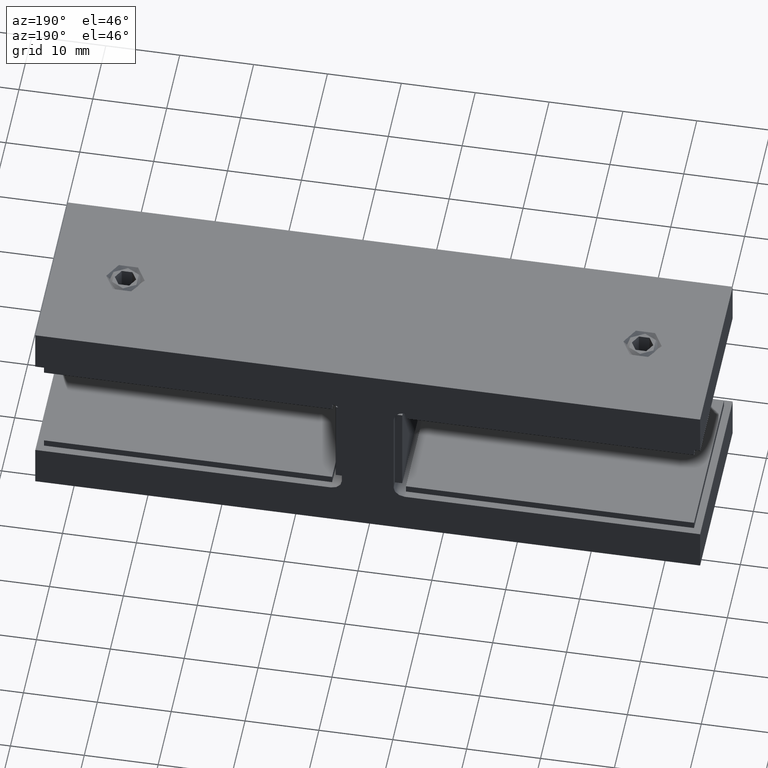
[diagram: clean part render]
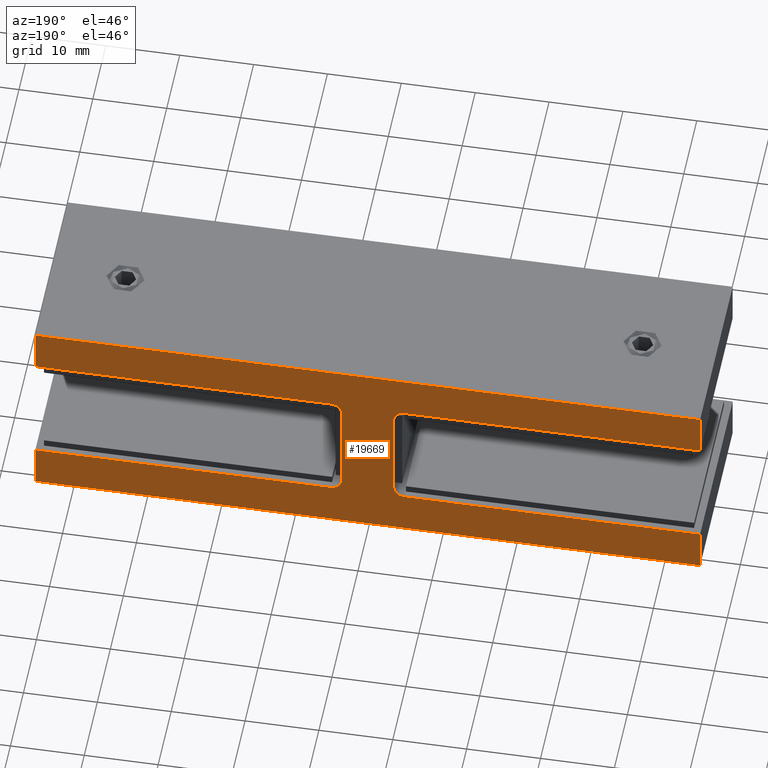
[diagram: same view with one face highlighted and labeled with its STEP entity id]
A machine part, auxiliary view. The second image highlights one B-rep face of the part: STEP entity #19669.
In plain terms, the highlighted planar face has unit normal (0, -1, 0).
Its self-contained STEP definition (entity closure, byte-faithful):
#244 = ORIENTED_EDGE ( 'NONE', *, *, #19443, .T. ) ;
#911 = VERTEX_POINT ( 'NONE', #19300 ) ;
#985 = EDGE_CURVE ( 'NONE', #11745, #911, #16335, .T. ) ;
#999 = EDGE_CURVE ( 'NONE', #12320, #14841, #11874, .T. ) ;
#1053 = VECTOR ( 'NONE', #21068, 1000.000000000000000 ) ;
#1247 = CARTESIAN_POINT ( 'NONE',  ( -3.499999999999986677, 12.50000000000000000, 6.500000000000013323 ) ) ;
#1248 = CIRCLE ( 'NONE', #17547, 1.499999999999999556 ) ;
#1629 = CARTESIAN_POINT ( 'NONE',  ( -3.499999999999995115, 12.50000000000000000, -6.500000000000007105 ) ) ;
#2101 = LINE ( 'NONE', #15121, #12374 ) ;
#2420 = DIRECTION ( 'NONE',  ( 0.000000000000000000, 0.000000000000000000, -1.000000000000000000 ) ) ;
#2794 = VERTEX_POINT ( 'NONE', #10122 ) ;
#2863 = ORIENTED_EDGE ( 'NONE', *, *, #18078, .T. ) ;
#2930 = VECTOR ( 'NONE', #16813, 1000.000000000000000 ) ;
#2936 = CARTESIAN_POINT ( 'NONE',  ( 45.00000000000000000, 12.50000000000000000, -7.999999999999996447 ) ) ;
#2970 = LINE ( 'NONE', #13623, #14796 ) ;
#3005 = CARTESIAN_POINT ( 'NONE',  ( 45.00000000000001421, 12.50000000000000000, 13.99999999999993783 ) ) ;
#3162 = EDGE_LOOP ( 'NONE', ( #17857, #19936, #8675, #3399, #20219, #12173, #4955, #244, #17465, #4289, #9055, #6201, #15520, #12302, #14852, #2863 ) ) ;
#3299 = CARTESIAN_POINT ( 'NONE',  ( 45.00000000000001421, 12.50000000000000000, 7.999999999999937828 ) ) ;
#3399 = ORIENTED_EDGE ( 'NONE', *, *, #3494, .T. ) ;
#3494 = EDGE_CURVE ( 'NONE', #13263, #7786, #17701, .T. ) ;
#3552 = DIRECTION ( 'NONE',  ( 0.000000000000000000, 0.000000000000000000, 1.000000000000000000 ) ) ;
#3720 = DIRECTION ( 'NONE',  ( -1.000000000000000000, 0.000000000000000000, 1.504820364702772198E-15 ) ) ;
#4064 = CARTESIAN_POINT ( 'NONE',  ( 5.000000000000005329, 12.50000000000000000, 6.499999999999999112 ) ) ;
#4085 = VERTEX_POINT ( 'NONE', #11321 ) ;
#4191 = CARTESIAN_POINT ( 'NONE',  ( 45.00000000000001421, 12.50000000000000000, 13.99999999999993783 ) ) ;
#4205 = LINE ( 'NONE', #14466, #1053 ) ;
#4217 = AXIS2_PLACEMENT_3D ( 'NONE', #4393, #17715, #2420 ) ;
#4289 = ORIENTED_EDGE ( 'NONE', *, *, #9369, .T. ) ;
#4393 = CARTESIAN_POINT ( 'NONE',  ( -4.999999999999994671, 12.50000000000000000, -6.500000000000005329 ) ) ;
#4512 = DIRECTION ( 'NONE',  ( -6.776263578034400740E-16, -0.000000000000000000, -1.000000000000000000 ) ) ;
#4698 = VERTEX_POINT ( 'NONE', #10431 ) ;
#4753 = DIRECTION ( 'NONE',  ( 0.000000000000000000, -1.000000000000000000, 0.000000000000000000 ) ) ;
#4795 = EDGE_CURVE ( 'NONE', #19897, #4880, #6606, .T. ) ;
#4880 = VERTEX_POINT ( 'NONE', #6547 ) ;
#4903 = CARTESIAN_POINT ( 'NONE',  ( -45.00000000000000000, 12.50000000000000000, -14.00000000000000178 ) ) ;
#4955 = ORIENTED_EDGE ( 'NONE', *, *, #15726, .T. ) ;
#5377 = CARTESIAN_POINT ( 'NONE',  ( 5.000000000000004441, 12.50000000000000000, 7.999999999999998224 ) ) ;
#5406 = AXIS2_PLACEMENT_3D ( 'NONE', #13519, #4753, #11985 ) ;
#5432 = CARTESIAN_POINT ( 'NONE',  ( 4.999999999999997335, 12.50000000000000000, -8.000000000000003553 ) ) ;
#5760 = CIRCLE ( 'NONE', #5406, 1.499999999999999556 ) ;
#5797 = LINE ( 'NONE', #17019, #6070 ) ;
#5982 = LINE ( 'NONE', #3299, #6752 ) ;
#6070 = VECTOR ( 'NONE', #6788, 1000.000000000000000 ) ;
#6137 = EDGE_CURVE ( 'NONE', #4698, #15692, #5797, .T. ) ;
#6201 = ORIENTED_EDGE ( 'NONE', *, *, #17256, .T. ) ;
#6500 = DIRECTION ( 'NONE',  ( 0.000000000000000000, 0.000000000000000000, -1.000000000000000000 ) ) ;
#6547 = CARTESIAN_POINT ( 'NONE',  ( 3.500000000000006217, 12.50000000000000000, 6.499999999999999112 ) ) ;
#6606 = CIRCLE ( 'NONE', #13221, 1.499999999999999556 ) ;
#6616 = EDGE_CURVE ( 'NONE', #14841, #2794, #4205, .T. ) ;
#6752 = VECTOR ( 'NONE', #3720, 1000.000000000000000 ) ;
#6788 = DIRECTION ( 'NONE',  ( -0.000000000000000000, -0.000000000000000000, 1.000000000000000000 ) ) ;
#6921 = EDGE_CURVE ( 'NONE', #9861, #20385, #2101, .T. ) ;
#7380 = LINE ( 'NONE', #4903, #2930 ) ;
#7512 = CARTESIAN_POINT ( 'NONE',  ( -3.499999999999996003, 12.50000000000000000, -8.000000000000005329 ) ) ;
#7525 = DIRECTION ( 'NONE',  ( 0.000000000000000000, -1.000000000000000000, 0.000000000000000000 ) ) ;
#7786 = VERTEX_POINT ( 'NONE', #1247 ) ;
#8454 = DIRECTION ( 'NONE',  ( 0.000000000000000000, 0.000000000000000000, -1.000000000000000000 ) ) ;
#8675 = ORIENTED_EDGE ( 'NONE', *, *, #10539, .T. ) ;
#8730 = VECTOR ( 'NONE', #18132, 1000.000000000000000 ) ;
#9055 = ORIENTED_EDGE ( 'NONE', *, *, #4795, .T. ) ;
#9268 = DIRECTION ( 'NONE',  ( 0.000000000000000000, -1.000000000000000000, 0.000000000000000000 ) ) ;
#9369 = EDGE_CURVE ( 'NONE', #911, #19897, #5982, .T. ) ;
#9730 = VECTOR ( 'NONE', #18788, 1000.000000000000000 ) ;
#9861 = VERTEX_POINT ( 'NONE', #10573 ) ;
#10122 = CARTESIAN_POINT ( 'NONE',  ( 45.00000000000000000, 12.50000000000000000, -13.99999999999999645 ) ) ;
#10431 = CARTESIAN_POINT ( 'NONE',  ( -45.00000000000000000, 12.50000000000000000, -14.00000000000000178 ) ) ;
#10491 = CARTESIAN_POINT ( 'NONE',  ( -44.99999999999998579, 12.50000000000000000, 8.000000000000063949 ) ) ;
#10539 = EDGE_CURVE ( 'NONE', #18155, #13263, #11258, .T. ) ;
#10573 = CARTESIAN_POINT ( 'NONE',  ( -4.999999999999984013, 12.50000000000000000, 8.000000000000014211 ) ) ;
#10579 = VECTOR ( 'NONE', #4512, 1000.000000000000000 ) ;
#10800 = LINE ( 'NONE', #20178, #9730 ) ;
#10951 = DIRECTION ( 'NONE',  ( 0.000000000000000000, 0.000000000000000000, -1.000000000000000000 ) ) ;
#11073 = FACE_OUTER_BOUND ( 'NONE', #3162, .T. ) ;
#11258 = CIRCLE ( 'NONE', #4217, 1.499999999999999556 ) ;
#11321 = CARTESIAN_POINT ( 'NONE',  ( -44.99999999999998579, 12.50000000000000000, 14.00000000000006395 ) ) ;
#11745 = VERTEX_POINT ( 'NONE', #4191 ) ;
#11874 = LINE ( 'NONE', #2936, #8730 ) ;
#11878 = CARTESIAN_POINT ( 'NONE',  ( -3.499999999999985789, 12.50000000000000000, 8.000000000000012434 ) ) ;
#11985 = DIRECTION ( 'NONE',  ( 0.000000000000000000, 0.000000000000000000, -1.000000000000000000 ) ) ;
#12173 = ORIENTED_EDGE ( 'NONE', *, *, #6921, .T. ) ;
#12302 = ORIENTED_EDGE ( 'NONE', *, *, #999, .T. ) ;
#12320 = VERTEX_POINT ( 'NONE', #5432 ) ;
#12374 = VECTOR ( 'NONE', #18770, 1000.000000000000000 ) ;
#12707 = DIRECTION ( 'NONE',  ( 0.000000000000000000, -0.000000000000000000, -1.000000000000000000 ) ) ;
#12960 = VECTOR ( 'NONE', #13624, 1000.000000000000000 ) ;
#13221 = AXIS2_PLACEMENT_3D ( 'NONE', #4064, #7525, #10951 ) ;
#13263 = VERTEX_POINT ( 'NONE', #1629 ) ;
#13519 = CARTESIAN_POINT ( 'NONE',  ( 4.999999999999997335, 12.50000000000000000, -6.500000000000004441 ) ) ;
#13623 = CARTESIAN_POINT ( 'NONE',  ( -44.99999999999998579, 12.50000000000000000, 8.000000000000063949 ) ) ;
#13624 = DIRECTION ( 'NONE',  ( 6.505213034913018715E-16, -0.000000000000000000, 1.000000000000000000 ) ) ;
#13741 = CARTESIAN_POINT ( 'NONE',  ( -4.999999999999985789, 12.50000000000000000, 6.500000000000014211 ) ) ;
#13887 = CARTESIAN_POINT ( 'NONE',  ( 45.00000000000000000, 12.50000000000000000, -7.999999999999996447 ) ) ;
#14424 = AXIS2_PLACEMENT_3D ( 'NONE', #17763, #9268, #12707 ) ;
#14466 = CARTESIAN_POINT ( 'NONE',  ( 45.00000000000000000, 12.50000000000000000, -13.99999999999999645 ) ) ;
#14796 = VECTOR ( 'NONE', #3552, 1000.000000000000000 ) ;
#14841 = VERTEX_POINT ( 'NONE', #13887 ) ;
#14852 = ORIENTED_EDGE ( 'NONE', *, *, #6616, .T. ) ;
#15121 = CARTESIAN_POINT ( 'NONE',  ( -3.499999999999985789, 12.50000000000000000, 8.000000000000012434 ) ) ;
#15429 = DIRECTION ( 'NONE',  ( 0.000000000000000000, -1.000000000000000000, 0.000000000000000000 ) ) ;
#15453 = CARTESIAN_POINT ( 'NONE',  ( 3.499999999999996891, 12.50000000000000000, -6.500000000000003553 ) ) ;
#15520 = ORIENTED_EDGE ( 'NONE', *, *, #19469, .T. ) ;
#15692 = VERTEX_POINT ( 'NONE', #21629 ) ;
#15726 = EDGE_CURVE ( 'NONE', #20385, #4085, #2970, .T. ) ;
#15928 = EDGE_CURVE ( 'NONE', #15692, #18155, #15998, .T. ) ;
#15998 = LINE ( 'NONE', #7512, #18323 ) ;
#16335 = LINE ( 'NONE', #3005, #16851 ) ;
#16813 = DIRECTION ( 'NONE',  ( -1.000000000000000000, -0.000000000000000000, -5.782411586589357392E-17 ) ) ;
#16851 = VECTOR ( 'NONE', #6500, 1000.000000000000000 ) ;
#17019 = CARTESIAN_POINT ( 'NONE',  ( -45.00000000000000000, 12.50000000000000000, -8.000000000000001776 ) ) ;
#17256 = EDGE_CURVE ( 'NONE', #4880, #19892, #19986, .T. ) ;
#17465 = ORIENTED_EDGE ( 'NONE', *, *, #985, .T. ) ;
#17547 = AXIS2_PLACEMENT_3D ( 'NONE', #13741, #15429, #8454 ) ;
#17697 = PLANE ( 'NONE',  #14424 ) ;
#17701 = LINE ( 'NONE', #11878, #12960 ) ;
#17715 = DIRECTION ( 'NONE',  ( 0.000000000000000000, -1.000000000000000000, 0.000000000000000000 ) ) ;
#17763 = CARTESIAN_POINT ( 'NONE',  ( 0.000000000000000000, 12.50000000000000000, 0.000000000000000000 ) ) ;
#17857 = ORIENTED_EDGE ( 'NONE', *, *, #6137, .T. ) ;
#18078 = EDGE_CURVE ( 'NONE', #2794, #4698, #7380, .T. ) ;
#18132 = DIRECTION ( 'NONE',  ( 1.000000000000000000, -0.000000000000000000, 1.672022627447524747E-16 ) ) ;
#18155 = VERTEX_POINT ( 'NONE', #18784 ) ;
#18323 = VECTOR ( 'NONE', #20949, 1000.000000000000000 ) ;
#18770 = DIRECTION ( 'NONE',  ( -1.000000000000000000, 0.000000000000000000, 1.254016970585643992E-15 ) ) ;
#18784 = CARTESIAN_POINT ( 'NONE',  ( -4.999999999999994671, 12.50000000000000000, -8.000000000000005329 ) ) ;
#18788 = DIRECTION ( 'NONE',  ( 1.000000000000000000, 0.000000000000000000, -1.407053486070077216E-15 ) ) ;
#19300 = CARTESIAN_POINT ( 'NONE',  ( 45.00000000000001421, 12.50000000000000000, 7.999999999999937828 ) ) ;
#19443 = EDGE_CURVE ( 'NONE', #4085, #11745, #10800, .T. ) ;
#19469 = EDGE_CURVE ( 'NONE', #19892, #12320, #5760, .T. ) ;
#19578 = CARTESIAN_POINT ( 'NONE',  ( 3.499999999999996003, 12.50000000000000000, -8.000000000000003553 ) ) ;
#19669 = ADVANCED_FACE ( 'NONE', ( #11073 ), #17697, .F. ) ;
#19892 = VERTEX_POINT ( 'NONE', #15453 ) ;
#19897 = VERTEX_POINT ( 'NONE', #5377 ) ;
#19936 = ORIENTED_EDGE ( 'NONE', *, *, #15928, .T. ) ;
#19986 = LINE ( 'NONE', #19578, #10579 ) ;
#20178 = CARTESIAN_POINT ( 'NONE',  ( -44.99999999999998579, 12.50000000000000000, 14.00000000000006395 ) ) ;
#20219 = ORIENTED_EDGE ( 'NONE', *, *, #21196, .T. ) ;
#20385 = VERTEX_POINT ( 'NONE', #10491 ) ;
#20949 = DIRECTION ( 'NONE',  ( 1.000000000000000000, -0.000000000000000000, -8.360113137237623735E-17 ) ) ;
#21068 = DIRECTION ( 'NONE',  ( -0.000000000000000000, -0.000000000000000000, -1.000000000000000000 ) ) ;
#21196 = EDGE_CURVE ( 'NONE', #7786, #9861, #1248, .T. ) ;
#21629 = CARTESIAN_POINT ( 'NONE',  ( -45.00000000000000000, 12.50000000000000000, -8.000000000000001776 ) ) ;